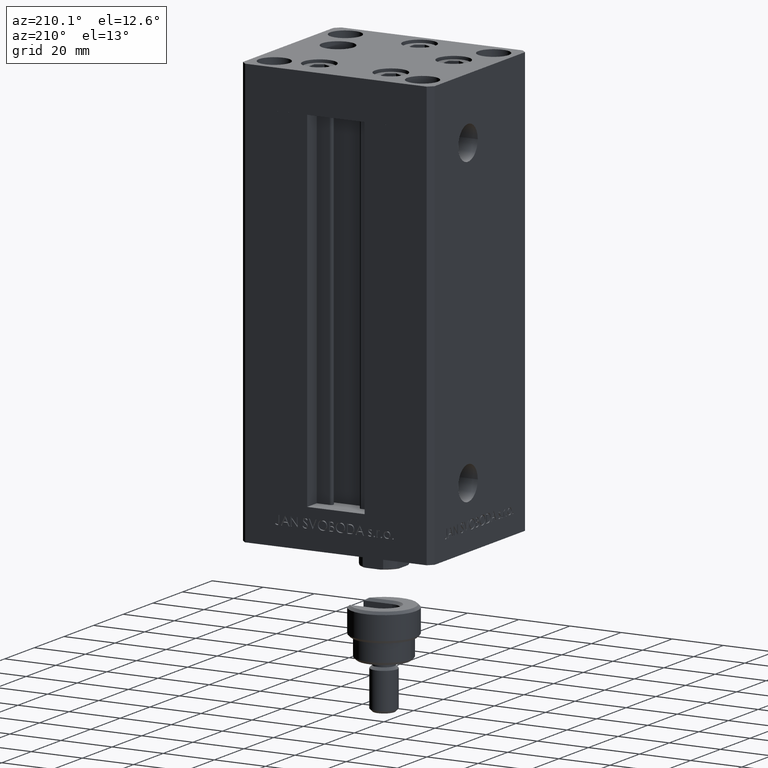
[diagram: clean part render]
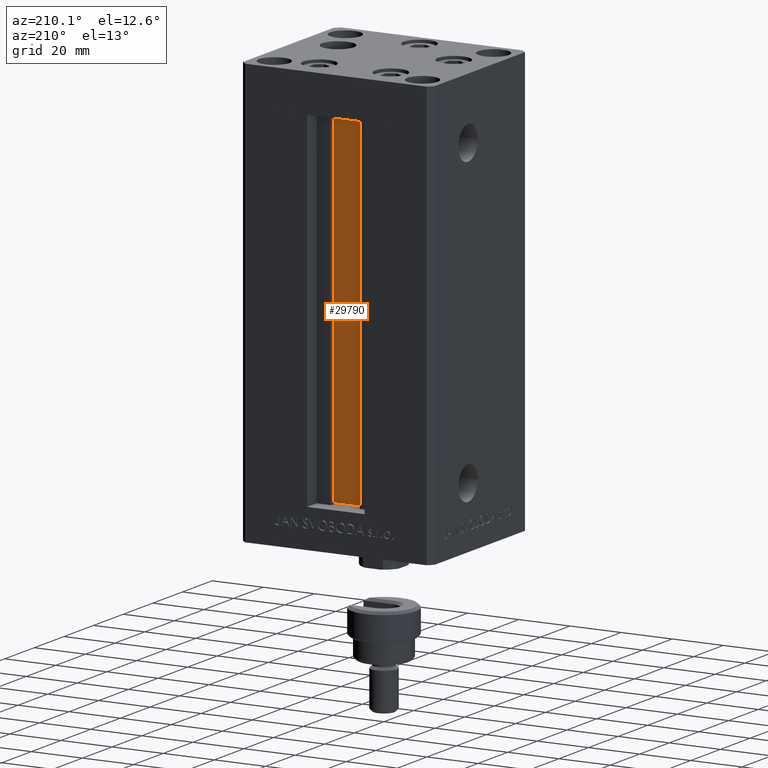
[diagram: same view with one face highlighted and labeled with its STEP entity id]
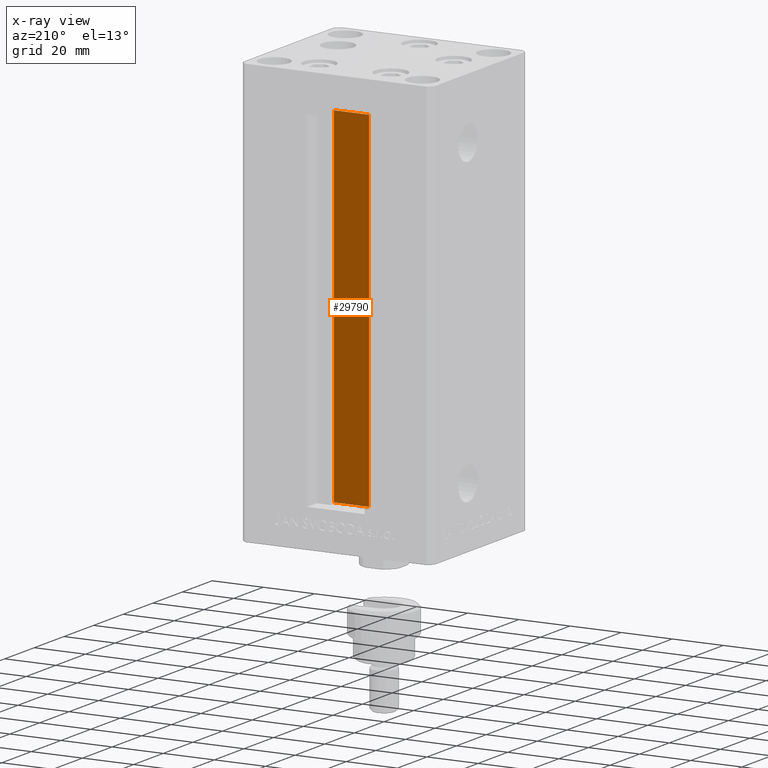
[diagram: x-ray of the same camera — body ghosted, the highlighted face saturated]
A machine part, auxiliary view. The second image highlights one B-rep face of the part: STEP entity #29790.
The next image is the same camera in x-ray: the body ghosted, the highlighted face saturated — about 0% of this face is hidden behind the body in this view.
In plain terms, the highlighted planar face has unit normal (0, -1, 0).
Its self-contained STEP definition (entity closure, byte-faithful):
#67 = EDGE_CURVE ( 'NONE', #7646, #35468, #39610, .T. ) ;
#244 = DIRECTION ( 'NONE',  ( 0.000000000000000000, -1.000000000000000000, -0.000000000000000000 ) ) ;
#415 = VERTEX_POINT ( 'NONE', #25912 ) ;
#690 = VECTOR ( 'NONE', #16974, 1000.000000000000000 ) ;
#1126 = LINE ( 'NONE', #42176, #19010 ) ;
#2024 = DIRECTION ( 'NONE',  ( 1.000000000000000000, -0.000000000000000000, -0.000000000000000000 ) ) ;
#4099 = CARTESIAN_POINT ( 'NONE',  ( 6.876153656360466826, 21.99999999999986855, 0.000000000000000000 ) ) ;
#5276 = AXIS2_PLACEMENT_3D ( 'NONE', #4099, #244, #31627 ) ;
#5955 = VECTOR ( 'NONE', #2024, 1000.000000000000000 ) ;
#7646 = VERTEX_POINT ( 'NONE', #41145 ) ;
#16134 = EDGE_LOOP ( 'NONE', ( #30746, #48089, #32079, #19946 ) ) ;
#16974 = DIRECTION ( 'NONE',  ( -0.000000000000000000, -0.000000000000000000, 1.000000000000000000 ) ) ;
#19010 = VECTOR ( 'NONE', #48158, 1000.000000000000000 ) ;
#19313 = LINE ( 'NONE', #32632, #5955 ) ;
#19946 = ORIENTED_EDGE ( 'NONE', *, *, #28692, .F. ) ;
#24857 = EDGE_CURVE ( 'NONE', #415, #7646, #19313, .T. ) ;
#25016 = CARTESIAN_POINT ( 'NONE',  ( 6.876153656360466826, 21.99999999999986855, 136.0000000000000000 ) ) ;
#25912 = CARTESIAN_POINT ( 'NONE',  ( -6.876153656360466826, 21.99999999999986855, 0.000000000000000000 ) ) ;
#26241 = CARTESIAN_POINT ( 'NONE',  ( 0.000000000000000000, 21.99999999999986855, 136.0000000000000000 ) ) ;
#26646 = VECTOR ( 'NONE', #34452, 1000.000000000000000 ) ;
#28692 = EDGE_CURVE ( 'NONE', #35468, #44172, #44989, .T. ) ;
#29790 = ADVANCED_FACE ( 'NONE', ( #31376 ), #39315, .F. ) ;
#30746 = ORIENTED_EDGE ( 'NONE', *, *, #67, .F. ) ;
#31376 = FACE_OUTER_BOUND ( 'NONE', #16134, .T. ) ;
#31627 = DIRECTION ( 'NONE',  ( 0.000000000000000000, 0.000000000000000000, -1.000000000000000000 ) ) ;
#32079 = ORIENTED_EDGE ( 'NONE', *, *, #49947, .T. ) ;
#32632 = CARTESIAN_POINT ( 'NONE',  ( 6.876153656360466826, 21.99999999999986855, 0.000000000000000000 ) ) ;
#34452 = DIRECTION ( 'NONE',  ( -1.000000000000000000, 0.000000000000000000, 0.000000000000000000 ) ) ;
#35468 = VERTEX_POINT ( 'NONE', #25016 ) ;
#39315 = PLANE ( 'NONE',  #5276 ) ;
#39610 = LINE ( 'NONE', #47818, #690 ) ;
#41145 = CARTESIAN_POINT ( 'NONE',  ( 6.876153656360466826, 21.99999999999986855, 0.000000000000000000 ) ) ;
#42176 = CARTESIAN_POINT ( 'NONE',  ( -6.876153656360466826, 21.99999999999986855, 0.000000000000000000 ) ) ;
#44172 = VERTEX_POINT ( 'NONE', #47490 ) ;
#44989 = LINE ( 'NONE', #26241, #26646 ) ;
#47490 = CARTESIAN_POINT ( 'NONE',  ( -6.876153656360466826, 21.99999999999986855, 136.0000000000000000 ) ) ;
#47818 = CARTESIAN_POINT ( 'NONE',  ( 6.876153656360466826, 21.99999999999986855, 0.000000000000000000 ) ) ;
#48089 = ORIENTED_EDGE ( 'NONE', *, *, #24857, .F. ) ;
#48158 = DIRECTION ( 'NONE',  ( -0.000000000000000000, -0.000000000000000000, 1.000000000000000000 ) ) ;
#49947 = EDGE_CURVE ( 'NONE', #415, #44172, #1126, .T. ) ;